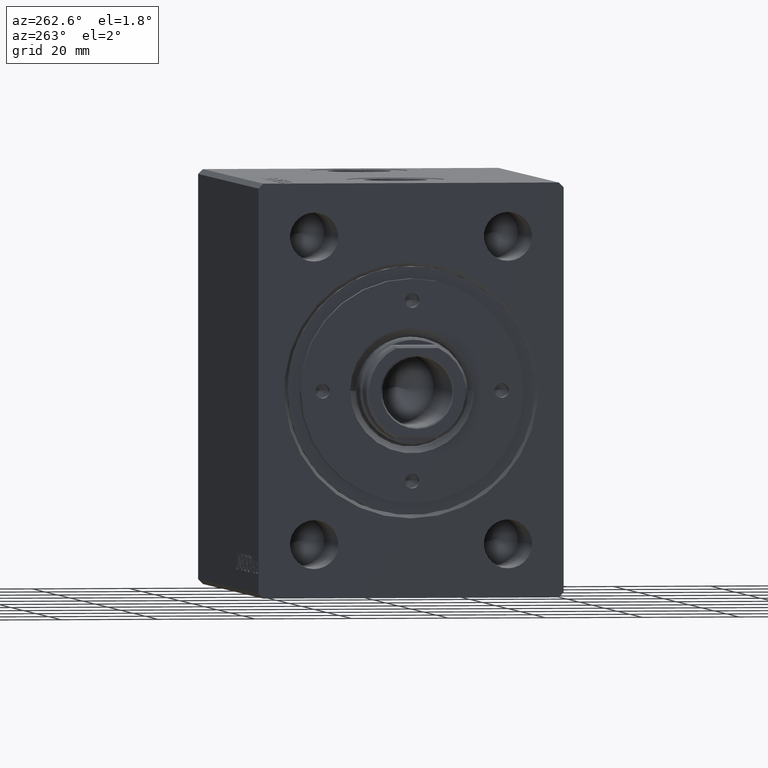
[diagram: clean part render]
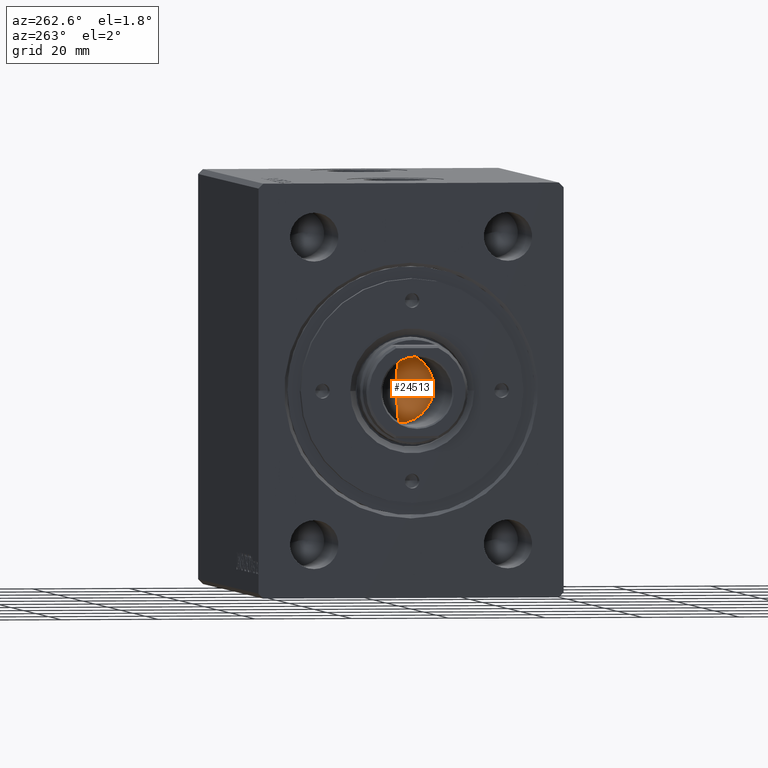
[diagram: same view with one face highlighted and labeled with its STEP entity id]
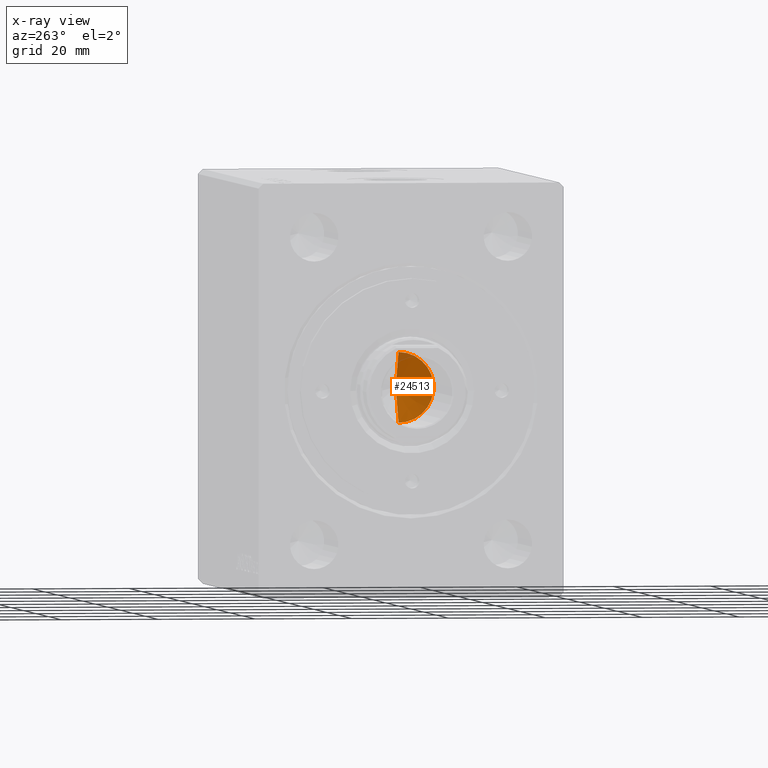
[diagram: x-ray of the same camera — body ghosted, the highlighted face saturated]
A machine part, auxiliary view. The second image highlights one B-rep face of the part: STEP entity #24513.
The next image is the same camera in x-ray: the body ghosted, the highlighted face saturated — about 5% of this face is hidden behind the body in this view.
In plain terms, the highlighted conical surface has half-angle 59 deg.
Its self-contained STEP definition (entity closure, byte-faithful):
#595 = DIRECTION ( 'NONE',  ( 1.000000000000000000, 0.000000000000000000, 0.000000000000000000 ) ) ;
#1067 = VERTEX_POINT ( 'NONE', #18655 ) ;
#1462 = VERTEX_POINT ( 'NONE', #7714 ) ;
#7714 = CARTESIAN_POINT ( 'NONE',  ( -8.301539408693383358E-15, 0.000000000000000000, 56.94376051205019706 ) ) ;
#7966 = CONICAL_SURFACE ( 'NONE', #38556, 7.249999999999994671, 1.029744258676653867 ) ;
#10129 = ORIENTED_EDGE ( 'NONE', *, *, #27182, .T. ) ;
#11453 = LINE ( 'NONE', #18346, #26856 ) ;
#14836 = CARTESIAN_POINT ( 'NONE',  ( -7.249999999999994671, 8.878689293818304158E-16, 61.30000000000000426 ) ) ;
#17518 = LINE ( 'NONE', #31093, #26006 ) ;
#18346 = CARTESIAN_POINT ( 'NONE',  ( -7.249999999999994671, 8.878689293818304158E-16, 61.30000000000000426 ) ) ;
#18655 = CARTESIAN_POINT ( 'NONE',  ( 7.249999999999994671, 0.000000000000000000, 61.30000000000000426 ) ) ;
#23847 = ORIENTED_EDGE ( 'NONE', *, *, #34578, .F. ) ;
#24513 = ADVANCED_FACE ( 'NONE', ( #32543 ), #7966, .F. ) ;
#25869 = DIRECTION ( 'NONE',  ( -0.000000000000000000, -0.000000000000000000, 1.000000000000000000 ) ) ;
#26006 = VECTOR ( 'NONE', #41354, 1000.000000000000000 ) ;
#26856 = VECTOR ( 'NONE', #41312, 1000.000000000000000 ) ;
#27182 = EDGE_CURVE ( 'NONE', #39351, #1067, #28690, .T. ) ;
#27995 = DIRECTION ( 'NONE',  ( -0.000000000000000000, -0.000000000000000000, 1.000000000000000000 ) ) ;
#28690 = CIRCLE ( 'NONE', #42912, 7.249999999999994671 ) ;
#31093 = CARTESIAN_POINT ( 'NONE',  ( 7.249999999999994671, 0.000000000000000000, 61.30000000000000426 ) ) ;
#31787 = ORIENTED_EDGE ( 'NONE', *, *, #43888, .T. ) ;
#32543 = FACE_OUTER_BOUND ( 'NONE', #42550, .T. ) ;
#34578 = EDGE_CURVE ( 'NONE', #1462, #1067, #17518, .T. ) ;
#38556 = AXIS2_PLACEMENT_3D ( 'NONE', #42809, #25869, #39454 ) ;
#39351 = VERTEX_POINT ( 'NONE', #14836 ) ;
#39454 = DIRECTION ( 'NONE',  ( 1.000000000000000000, 0.000000000000000000, 0.000000000000000000 ) ) ;
#41312 = DIRECTION ( 'NONE',  ( -0.8571673007021120005, 1.049727191138618326E-16, 0.5150380749100547106 ) ) ;
#41354 = DIRECTION ( 'NONE',  ( 0.8571673007021120005, 0.000000000000000000, 0.5150380749100547106 ) ) ;
#42550 = EDGE_LOOP ( 'NONE', ( #23847, #31787, #10129 ) ) ;
#42809 = CARTESIAN_POINT ( 'NONE',  ( 0.000000000000000000, 0.000000000000000000, 61.30000000000000426 ) ) ;
#42912 = AXIS2_PLACEMENT_3D ( 'NONE', #43660, #27995, #595 ) ;
#43660 = CARTESIAN_POINT ( 'NONE',  ( 0.000000000000000000, 0.000000000000000000, 61.30000000000000426 ) ) ;
#43888 = EDGE_CURVE ( 'NONE', #1462, #39351, #11453, .T. ) ;